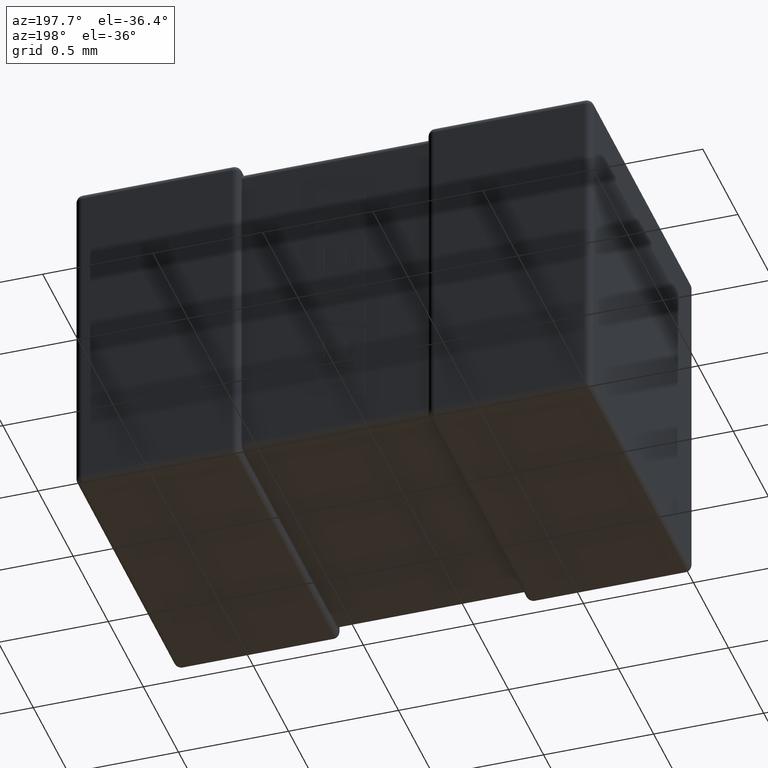
[diagram: clean part render]
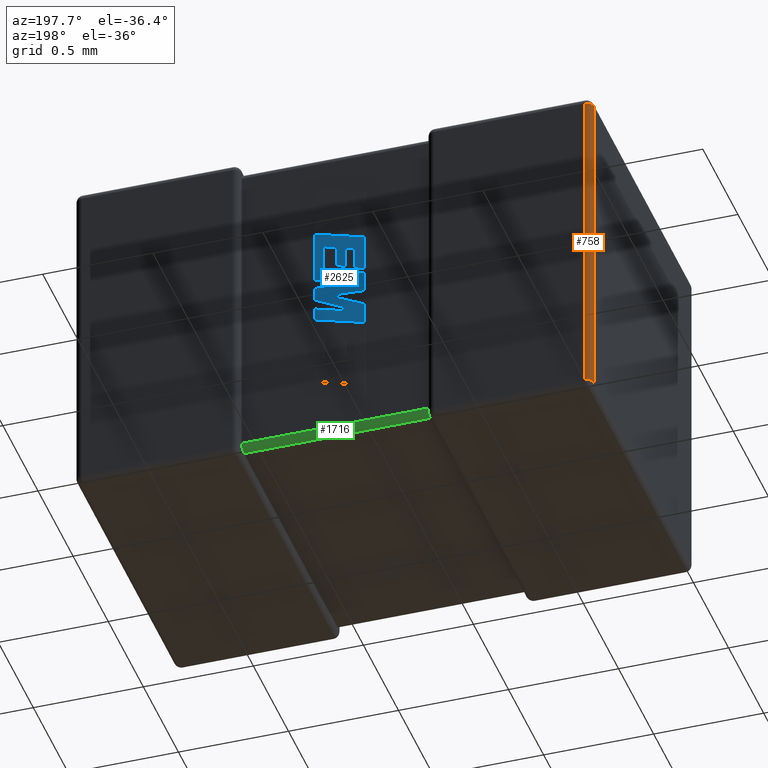
[diagram: same view with three faces highlighted in distinct colors, each labeled with its STEP entity id]
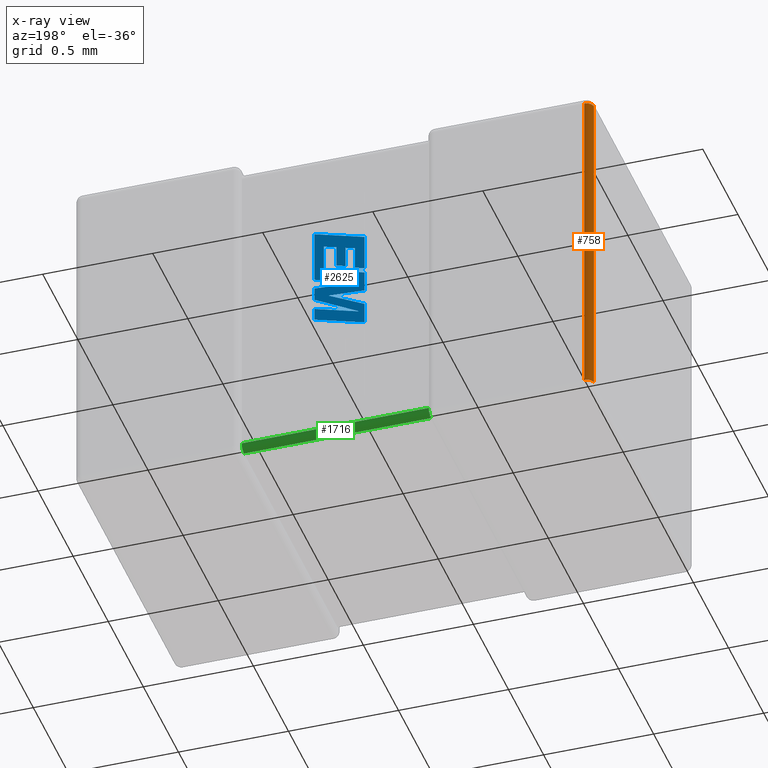
[diagram: x-ray of the same camera — body ghosted, the three highlighted faces saturated]
A machine part, auxiliary view with three faces highlighted in distinct colors.
The next image is the same camera in x-ray (body ghosted, the three faces saturated) — at least one of them is partly hidden behind the body in this view.
Their STEP definitions:

[orange] entity #758 — the highlighted cylindrical surface (edge-blend (fillet) strip) has radius 0.0322 mm, axis along (0, 0, -1).
#372 = CARTESIAN_POINT ( 'NONE',  ( 0.03223999999999978272, 1.417759999999999909, 0.000000000000000000 ) ) ;
#383 = CARTESIAN_POINT ( 'NONE',  ( 0.000000000000000000, 1.417759999999999909, -1.517759999999999998 ) ) ;
#401 = CARTESIAN_POINT ( 'NONE',  ( 0.03223999999999978272, 1.449999999999999956, -0.03223999999999999783 ) ) ;
#427 = ORIENTED_EDGE ( 'NONE', *, *, #4547, .F. ) ;
#614 = EDGE_LOOP ( 'NONE', ( #4531, #3087, #4638, #427 ) ) ;
#698 = VERTEX_POINT ( 'NONE', #3547 ) ;
#758 = ADVANCED_FACE ( 'NONE', ( #3978 ), #1135, .T. ) ;
#766 = CARTESIAN_POINT ( 'NONE',  ( 0.03223999999999999783, 1.417759999999999909, -1.517759999999999998 ) ) ;
#785 = EDGE_CURVE ( 'NONE', #2892, #698, #3423, .T. ) ;
#946 = CARTESIAN_POINT ( 'NONE',  ( 0.03223999999999978272, 1.449999999999999956, 0.000000000000000000 ) ) ;
#971 = LINE ( 'NONE', #1674, #4300 ) ;
#1043 = DIRECTION ( 'NONE',  ( -1.000000000000000000, 0.000000000000000000, 0.000000000000000000 ) ) ;
#1135 = CYLINDRICAL_SURFACE ( 'NONE', #3499, 0.03223999999999999783 ) ;
#1674 = CARTESIAN_POINT ( 'NONE',  ( 0.000000000000000000, 1.417759999999999909, -1.550000000000000044 ) ) ;
#1725 = AXIS2_PLACEMENT_3D ( 'NONE', #766, #4381, #2937 ) ;
#1796 = VERTEX_POINT ( 'NONE', #383 ) ;
#1866 = VECTOR ( 'NONE', #2387, 1000.000000000000000 ) ;
#2337 = LINE ( 'NONE', #946, #1866 ) ;
#2387 = DIRECTION ( 'NONE',  ( 0.000000000000000000, 0.000000000000000000, 1.000000000000000000 ) ) ;
#2892 = VERTEX_POINT ( 'NONE', #401 ) ;
#2937 = DIRECTION ( 'NONE',  ( -1.000000000000000000, 0.000000000000000000, 0.000000000000000000 ) ) ;
#3087 = ORIENTED_EDGE ( 'NONE', *, *, #4634, .F. ) ;
#3169 = DIRECTION ( 'NONE',  ( -0.000000000000000000, 0.000000000000000000, -1.000000000000000000 ) ) ;
#3237 = CIRCLE ( 'NONE', #1725, 0.03223999999999999783 ) ;
#3423 = CIRCLE ( 'NONE', #3803, 0.03224000000000000477 ) ;
#3499 = AXIS2_PLACEMENT_3D ( 'NONE', #372, #4326, #1043 ) ;
#3547 = CARTESIAN_POINT ( 'NONE',  ( 0.000000000000000000, 1.417759999999999909, -0.03223999999999999783 ) ) ;
#3662 = DIRECTION ( 'NONE',  ( 1.000000000000000000, 0.000000000000000000, 0.000000000000000000 ) ) ;
#3803 = AXIS2_PLACEMENT_3D ( 'NONE', #4006, #4309, #3662 ) ;
#3978 = FACE_OUTER_BOUND ( 'NONE', #614, .T. ) ;
#4006 = CARTESIAN_POINT ( 'NONE',  ( 0.03223999999999978272, 1.417759999999999909, -0.03223999999999999783 ) ) ;
#4300 = VECTOR ( 'NONE', #3169, 1000.000000000000000 ) ;
#4309 = DIRECTION ( 'NONE',  ( 0.000000000000000000, -0.000000000000000000, 1.000000000000000000 ) ) ;
#4326 = DIRECTION ( 'NONE',  ( 0.000000000000000000, 0.000000000000000000, -1.000000000000000000 ) ) ;
#4381 = DIRECTION ( 'NONE',  ( 0.000000000000000000, 0.000000000000000000, -1.000000000000000000 ) ) ;
#4471 = EDGE_CURVE ( 'NONE', #1796, #4550, #3237, .T. ) ;
#4531 = ORIENTED_EDGE ( 'NONE', *, *, #4471, .F. ) ;
#4547 = EDGE_CURVE ( 'NONE', #4550, #2892, #2337, .T. ) ;
#4549 = CARTESIAN_POINT ( 'NONE',  ( 0.03223999999999978272, 1.449999999999999956, -1.517759999999999998 ) ) ;
#4550 = VERTEX_POINT ( 'NONE', #4549 ) ;
#4634 = EDGE_CURVE ( 'NONE', #698, #1796, #971, .T. ) ;
#4638 = ORIENTED_EDGE ( 'NONE', *, *, #785, .F. ) ;

[blue] entity #2625 — the highlighted planar face has unit normal (0, -1, 0).
#10 = ORIENTED_EDGE ( 'NONE', *, *, #977, .T. ) ;
#38 = EDGE_CURVE ( 'NONE', #4189, #3215, #2059, .T. ) ;
#72 = VERTEX_POINT ( 'NONE', #3448 ) ;
#85 = EDGE_CURVE ( 'NONE', #3698, #3290, #3870, .T. ) ;
#87 = EDGE_CURVE ( 'NONE', #663, #1887, #1621, .T. ) ;
#154 = CARTESIAN_POINT ( 'NONE',  ( 1.126889512155282880, 1.422759999999999803, -0.5438665490579562833 ) ) ;
#160 = CARTESIAN_POINT ( 'NONE',  ( 1.269000000000003681, 1.422759999999999803, -0.4384253323412780623 ) ) ;
#170 = CARTESIAN_POINT ( 'NONE',  ( 1.269000000000003681, 1.422759999999999803, -0.7915325740813675681 ) ) ;
#206 = LINE ( 'NONE', #1644, #3233 ) ;
#236 = ORIENTED_EDGE ( 'NONE', *, *, #1053, .T. ) ;
#274 = EDGE_CURVE ( 'NONE', #2486, #4004, #1537, .T. ) ;
#321 = CARTESIAN_POINT ( 'NONE',  ( 1.041132956314514857, 1.422759999999999803, -0.6723368301145032921 ) ) ;
#337 = CARTESIAN_POINT ( 'NONE',  ( 1.269000000000003681, 1.422759999999999803, -0.8406046158351553332 ) ) ;
#492 = VERTEX_POINT ( 'NONE', #1813 ) ;
#500 = VECTOR ( 'NONE', #1870, 1000.000000000000000 ) ;
#508 = LINE ( 'NONE', #2225, #1713 ) ;
#513 = CARTESIAN_POINT ( 'NONE',  ( 1.084506278058296802, 1.422759999999999803, -0.6600178949437544018 ) ) ;
#531 = DIRECTION ( 'NONE',  ( -0.9610674221107078363, 0.000000000000000000, -0.2763139702539095244 ) ) ;
#645 = VERTEX_POINT ( 'NONE', #2266 ) ;
#663 = VERTEX_POINT ( 'NONE', #2686 ) ;
#678 = EDGE_CURVE ( 'NONE', #1523, #3459, #1018, .T. ) ;
#696 = DIRECTION ( 'NONE',  ( -0.9611638845408968512, 0.000000000000000000, -0.2759782365590690012 ) ) ;
#729 = EDGE_CURVE ( 'NONE', #2535, #645, #1729, .T. ) ;
#735 = VECTOR ( 'NONE', #989, 1000.000000000000000 ) ;
#752 = FACE_OUTER_BOUND ( 'NONE', #2734, .T. ) ;
#800 = CARTESIAN_POINT ( 'NONE',  ( 1.225648156714193471, 1.422759999999999803, -0.5157117543673824800 ) ) ;
#820 = CARTESIAN_POINT ( 'NONE',  ( 1.126889512155282880, 1.422759999999999803, -0.6416697486451697907 ) ) ;
#824 = LINE ( 'NONE', #800, #3346 ) ;
#831 = CARTESIAN_POINT ( 'NONE',  ( 1.225648156714193471, 1.422759999999999803, -0.6420286467557699828 ) ) ;
#849 = LINE ( 'NONE', #170, #1914 ) ;
#872 = EDGE_CURVE ( 'NONE', #4455, #492, #824, .T. ) ;
#939 = EDGE_CURVE ( 'NONE', #4292, #3698, #4591, .T. ) ;
#949 = CARTESIAN_POINT ( 'NONE',  ( 1.269000000000003681, 1.422759999999999803, -0.7307852580555117550 ) ) ;
#969 = VECTOR ( 'NONE', #1984, 1000.000000000000000 ) ;
#977 = EDGE_CURVE ( 'NONE', #492, #4189, #1995, .T. ) ;
#989 = DIRECTION ( 'NONE',  ( 0.000000000000000000, 0.000000000000000000, 1.000000000000000000 ) ) ;
#1018 = LINE ( 'NONE', #1351, #2280 ) ;
#1027 = EDGE_CURVE ( 'NONE', #1880, #2535, #4163, .T. ) ;
#1047 = CARTESIAN_POINT ( 'NONE',  ( 1.269000000000003681, 1.422759999999999803, -0.6839081761791220293 ) ) ;
#1053 = EDGE_CURVE ( 'NONE', #3465, #3045, #3489, .T. ) ;
#1070 = LINE ( 'NONE', #1375, #4496 ) ;
#1115 = CARTESIAN_POINT ( 'NONE',  ( 1.041132956314514857, 1.422759999999999803, -0.6723368301145032921 ) ) ;
#1192 = ORIENTED_EDGE ( 'NONE', *, *, #1027, .T. ) ;
#1205 = LINE ( 'NONE', #820, #4271 ) ;
#1234 = VECTOR ( 'NONE', #2332, 1000.000000000000114 ) ;
#1257 = LINE ( 'NONE', #3012, #1981 ) ;
#1259 = ORIENTED_EDGE ( 'NONE', *, *, #3210, .T. ) ;
#1285 = LINE ( 'NONE', #2398, #969 ) ;
#1305 = VECTOR ( 'NONE', #3802, 1000.000000000000114 ) ;
#1316 = EDGE_CURVE ( 'NONE', #3215, #3190, #1205, .T. ) ;
#1336 = VECTOR ( 'NONE', #1596, 1000.000000000000000 ) ;
#1351 = CARTESIAN_POINT ( 'NONE',  ( 1.041132956314514857, 1.422759999999999803, -0.9640226091935145680 ) ) ;
#1364 = CARTESIAN_POINT ( 'NONE',  ( 1.041132956314514857, 1.422759999999999803, -0.5039962945937563887 ) ) ;
#1375 = CARTESIAN_POINT ( 'NONE',  ( 1.269000000000003681, 1.422759999999999803, -0.6839081761791220293 ) ) ;
#1376 = EDGE_CURVE ( 'NONE', #3459, #1880, #2319, .T. ) ;
#1394 = CARTESIAN_POINT ( 'NONE',  ( 1.225648156714193471, 1.422759999999999803, -0.5157117543673824800 ) ) ;
#1417 = ORIENTED_EDGE ( 'NONE', *, *, #3788, .T. ) ;
#1470 = PLANE ( 'NONE',  #3907 ) ;
#1523 = VERTEX_POINT ( 'NONE', #3337 ) ;
#1535 = LINE ( 'NONE', #154, #4298 ) ;
#1537 = LINE ( 'NONE', #513, #3580 ) ;
#1560 = VERTEX_POINT ( 'NONE', #831 ) ;
#1586 = ORIENTED_EDGE ( 'NONE', *, *, #38, .T. ) ;
#1590 = DIRECTION ( 'NONE',  ( 0.000000000000000000, 0.000000000000000000, 1.000000000000000000 ) ) ;
#1596 = DIRECTION ( 'NONE',  ( 0.000000000000000000, 0.000000000000000000, -1.000000000000000000 ) ) ;
#1621 = LINE ( 'NONE', #3515, #2827 ) ;
#1644 = CARTESIAN_POINT ( 'NONE',  ( 1.225648156714193471, 1.422759999999999803, -0.6420286467557699828 ) ) ;
#1656 = CARTESIAN_POINT ( 'NONE',  ( 1.203924100055729252, 1.422759999999999803, -0.7833425935635931481 ) ) ;
#1684 = EDGE_CURVE ( 'NONE', #4029, #663, #1070, .T. ) ;
#1713 = VECTOR ( 'NONE', #531, 1000.000000000000114 ) ;
#1729 = LINE ( 'NONE', #3495, #2895 ) ;
#1813 = CARTESIAN_POINT ( 'NONE',  ( 1.169014311898064706, 1.422759999999999803, -0.5318483123047624828 ) ) ;
#1821 = CARTESIAN_POINT ( 'NONE',  ( 1.065159037018030608, 1.422759999999999803, -0.8991410363531673333 ) ) ;
#1826 = VECTOR ( 'NONE', #3449, 1000.000000000000000 ) ;
#1870 = DIRECTION ( 'NONE',  ( 0.000000000000000000, 0.000000000000000000, -1.000000000000000000 ) ) ;
#1880 = VERTEX_POINT ( 'NONE', #1656 ) ;
#1887 = VERTEX_POINT ( 'NONE', #949 ) ;
#1905 = ORIENTED_EDGE ( 'NONE', *, *, #872, .T. ) ;
#1912 = EDGE_CURVE ( 'NONE', #2196, #4292, #849, .T. ) ;
#1914 = VECTOR ( 'NONE', #4551, 1000.000000000000227 ) ;
#1915 = CARTESIAN_POINT ( 'NONE',  ( 1.041132956314514857, 1.422759999999999803, -0.5039962945937563887 ) ) ;
#1924 = CARTESIAN_POINT ( 'NONE',  ( 1.269000000000003681, 1.422759999999999803, -0.7915325740813675681 ) ) ;
#1928 = ORIENTED_EDGE ( 'NONE', *, *, #2927, .T. ) ;
#1981 = VECTOR ( 'NONE', #3361, 1000.000000000000000 ) ;
#1984 = DIRECTION ( 'NONE',  ( 0.000000000000000000, 0.000000000000000000, -1.000000000000000000 ) ) ;
#1995 = LINE ( 'NONE', #3516, #1826 ) ;
#2002 = DIRECTION ( 'NONE',  ( 0.000000000000000000, 0.000000000000000000, 1.000000000000000000 ) ) ;
#2037 = DIRECTION ( 'NONE',  ( -0.9985542843760948362, 0.000000000000000000, -0.05375259206908061110 ) ) ;
#2059 = LINE ( 'NONE', #3073, #1234 ) ;
#2096 = ORIENTED_EDGE ( 'NONE', *, *, #3044, .T. ) ;
#2130 = VECTOR ( 'NONE', #4458, 1000.000000000000114 ) ;
#2196 = VERTEX_POINT ( 'NONE', #1924 ) ;
#2204 = VECTOR ( 'NONE', #3778, 1000.000000000000000 ) ;
#2225 = CARTESIAN_POINT ( 'NONE',  ( 1.269000000000003681, 1.422759999999999803, -0.8985091539642460212 ) ) ;
#2258 = DIRECTION ( 'NONE',  ( -0.9617234872620624708, 0.000000000000000000, -0.2740217765953968376 ) ) ;
#2266 = CARTESIAN_POINT ( 'NONE',  ( 1.041132956314514857, 1.422759999999999803, -0.6950651962186354949 ) ) ;
#2280 = VECTOR ( 'NONE', #2753, 1000.000000000000000 ) ;
#2319 = LINE ( 'NONE', #3320, #2130 ) ;
#2332 = DIRECTION ( 'NONE',  ( -0.9615454294334447871, 0.000000000000000000, -0.2746459304917006072 ) ) ;
#2338 = ORIENTED_EDGE ( 'NONE', *, *, #3546, .T. ) ;
#2375 = EDGE_CURVE ( 'NONE', #3045, #4029, #4512, .T. ) ;
#2388 = ORIENTED_EDGE ( 'NONE', *, *, #2375, .T. ) ;
#2398 = CARTESIAN_POINT ( 'NONE',  ( 1.269000000000003681, 1.422759999999999803, -0.7307852580555117550 ) ) ;
#2408 = DIRECTION ( 'NONE',  ( 0.9984327301130250243, 0.000000000000000000, 0.05596501978067341954 ) ) ;
#2433 = CARTESIAN_POINT ( 'NONE',  ( 1.269000000000003681, 1.422759999999999803, -0.4384253323412780623 ) ) ;
#2486 = VERTEX_POINT ( 'NONE', #3096 ) ;
#2535 = VERTEX_POINT ( 'NONE', #4607 ) ;
#2595 = VECTOR ( 'NONE', #2814, 1000.000000000000114 ) ;
#2625 = ADVANCED_FACE ( 'NONE', ( #752 ), #1470, .F. ) ;
#2648 = ORIENTED_EDGE ( 'NONE', *, *, #2737, .T. ) ;
#2669 = DIRECTION ( 'NONE',  ( -0.9619530280415479195, 0.000000000000000000, -0.2732148821746301914 ) ) ;
#2685 = ORIENTED_EDGE ( 'NONE', *, *, #87, .T. ) ;
#2686 = CARTESIAN_POINT ( 'NONE',  ( 1.066135960447848641, 1.422759999999999803, -0.7421563696426072276 ) ) ;
#2731 = LINE ( 'NONE', #3100, #1336 ) ;
#2734 = EDGE_LOOP ( 'NONE', ( #3621, #2872, #1192, #3702, #1417, #1259, #1905, #10, #1586, #4482, #3382, #1928, #4167, #2096, #236, #2388, #4671, #2685, #2338, #3806, #4324, #4406, #2648 ) ) ;
#2737 = EDGE_CURVE ( 'NONE', #3290, #1523, #508, .T. ) ;
#2753 = DIRECTION ( 'NONE',  ( 0.000000000000000000, 0.000000000000000000, 1.000000000000000000 ) ) ;
#2814 = DIRECTION ( 'NONE',  ( 0.9610029908221285888, 0.000000000000000000, 0.2765379750249931101 ) ) ;
#2827 = VECTOR ( 'NONE', #2408, 1000.000000000000227 ) ;
#2872 = ORIENTED_EDGE ( 'NONE', *, *, #1376, .T. ) ;
#2895 = VECTOR ( 'NONE', #2002, 1000.000000000000000 ) ;
#2927 = EDGE_CURVE ( 'NONE', #72, #2486, #2731, .T. ) ;
#3012 = CARTESIAN_POINT ( 'NONE',  ( 1.041132956314514857, 1.422759999999999803, -0.6950651962186354949 ) ) ;
#3044 = EDGE_CURVE ( 'NONE', #4004, #3465, #4238, .T. ) ;
#3045 = VERTEX_POINT ( 'NONE', #2433 ) ;
#3073 = CARTESIAN_POINT ( 'NONE',  ( 1.169014311898064706, 1.422759999999999803, -0.6296376548220525837 ) ) ;
#3096 = CARTESIAN_POINT ( 'NONE',  ( 1.084506278058296802, 1.422759999999999803, -0.6600178949437544018 ) ) ;
#3100 = CARTESIAN_POINT ( 'NONE',  ( 1.084506278058296802, 1.422759999999999803, -0.5561993412986168117 ) ) ;
#3115 = CARTESIAN_POINT ( 'NONE',  ( 1.269000000000003681, 1.422759999999999803, -0.8406046158351553332 ) ) ;
#3116 = CARTESIAN_POINT ( 'NONE',  ( 1.065159037018030608, 1.422759999999999803, -0.8991410363531673333 ) ) ;
#3190 = VERTEX_POINT ( 'NONE', #3420 ) ;
#3205 = CARTESIAN_POINT ( 'NONE',  ( 1.269000000000003681, 1.422759999999999803, -0.8985091539642460212 ) ) ;
#3210 = EDGE_CURVE ( 'NONE', #1560, #4455, #206, .T. ) ;
#3215 = VERTEX_POINT ( 'NONE', #4560 ) ;
#3233 = VECTOR ( 'NONE', #4541, 1000.000000000000000 ) ;
#3255 = DIRECTION ( 'NONE',  ( 0.000000000000000000, -1.000000000000000000, 0.000000000000000000 ) ) ;
#3290 = VERTEX_POINT ( 'NONE', #3205 ) ;
#3320 = CARTESIAN_POINT ( 'NONE',  ( 1.041132956314514857, 1.422759999999999803, -0.8640816736198583259 ) ) ;
#3337 = CARTESIAN_POINT ( 'NONE',  ( 1.041132956314514857, 1.422759999999999803, -0.9640226091935145680 ) ) ;
#3346 = VECTOR ( 'NONE', #2258, 1000.000000000000114 ) ;
#3354 = CARTESIAN_POINT ( 'NONE',  ( 1.169014311898064706, 1.422759999999999803, -0.6296376548220525837 ) ) ;
#3361 = DIRECTION ( 'NONE',  ( 0.9610853065513847993, 0.000000000000000000, 0.2762517575166369976 ) ) ;
#3382 = ORIENTED_EDGE ( 'NONE', *, *, #3497, .T. ) ;
#3420 = CARTESIAN_POINT ( 'NONE',  ( 1.126889512155282880, 1.422759999999999803, -0.5438665490579562833 ) ) ;
#3448 = CARTESIAN_POINT ( 'NONE',  ( 1.084506278058296802, 1.422759999999999803, -0.5561993412986168117 ) ) ;
#3449 = DIRECTION ( 'NONE',  ( 0.000000000000000000, 0.000000000000000000, -1.000000000000000000 ) ) ;
#3459 = VERTEX_POINT ( 'NONE', #3705 ) ;
#3465 = VERTEX_POINT ( 'NONE', #1915 ) ;
#3489 = LINE ( 'NONE', #1364, #2595 ) ;
#3495 = CARTESIAN_POINT ( 'NONE',  ( 1.041132956314514857, 1.422759999999999803, -0.7921057084777192170 ) ) ;
#3497 = EDGE_CURVE ( 'NONE', #3190, #72, #1535, .T. ) ;
#3515 = CARTESIAN_POINT ( 'NONE',  ( 1.066135960447848641, 1.422759999999999803, -0.7421563696426072276 ) ) ;
#3516 = CARTESIAN_POINT ( 'NONE',  ( 1.169014311898064706, 1.422759999999999803, -0.5318483123047624828 ) ) ;
#3546 = EDGE_CURVE ( 'NONE', #1887, #2196, #1285, .T. ) ;
#3580 = VECTOR ( 'NONE', #2669, 1000.000000000000000 ) ;
#3621 = ORIENTED_EDGE ( 'NONE', *, *, #678, .T. ) ;
#3698 = VERTEX_POINT ( 'NONE', #337 ) ;
#3702 = ORIENTED_EDGE ( 'NONE', *, *, #729, .T. ) ;
#3705 = CARTESIAN_POINT ( 'NONE',  ( 1.041132956314514857, 1.422759999999999803, -0.8640816736198583259 ) ) ;
#3778 = DIRECTION ( 'NONE',  ( 0.000000000000000000, 0.000000000000000000, -1.000000000000000000 ) ) ;
#3788 = EDGE_CURVE ( 'NONE', #645, #1560, #1257, .T. ) ;
#3802 = DIRECTION ( 'NONE',  ( 0.9611542233438712390, 0.000000000000000000, 0.2760118818968482213 ) ) ;
#3806 = ORIENTED_EDGE ( 'NONE', *, *, #1912, .T. ) ;
#3870 = LINE ( 'NONE', #3115, #2204 ) ;
#3907 = AXIS2_PLACEMENT_3D ( 'NONE', #4647, #3255, #3946 ) ;
#3946 = DIRECTION ( 'NONE',  ( 0.000000000000000000, 0.000000000000000000, -1.000000000000000000 ) ) ;
#4004 = VERTEX_POINT ( 'NONE', #1115 ) ;
#4029 = VERTEX_POINT ( 'NONE', #1047 ) ;
#4087 = DIRECTION ( 'NONE',  ( -0.9601763114327565019, 0.000000000000000000, -0.2793947940878393488 ) ) ;
#4113 = VECTOR ( 'NONE', #2037, 1000.000000000000114 ) ;
#4163 = LINE ( 'NONE', #4544, #4113 ) ;
#4167 = ORIENTED_EDGE ( 'NONE', *, *, #274, .T. ) ;
#4189 = VERTEX_POINT ( 'NONE', #3354 ) ;
#4238 = LINE ( 'NONE', #321, #735 ) ;
#4271 = VECTOR ( 'NONE', #1590, 1000.000000000000000 ) ;
#4292 = VERTEX_POINT ( 'NONE', #1821 ) ;
#4298 = VECTOR ( 'NONE', #4087, 1000.000000000000114 ) ;
#4324 = ORIENTED_EDGE ( 'NONE', *, *, #939, .T. ) ;
#4406 = ORIENTED_EDGE ( 'NONE', *, *, #85, .T. ) ;
#4455 = VERTEX_POINT ( 'NONE', #1394 ) ;
#4458 = DIRECTION ( 'NONE',  ( 0.8958676361826827250, 0.000000000000000000, 0.4443210308329466618 ) ) ;
#4482 = ORIENTED_EDGE ( 'NONE', *, *, #1316, .T. ) ;
#4496 = VECTOR ( 'NONE', #696, 1000.000000000000114 ) ;
#4512 = LINE ( 'NONE', #160, #500 ) ;
#4541 = DIRECTION ( 'NONE',  ( 0.000000000000000000, 0.000000000000000000, 1.000000000000000000 ) ) ;
#4544 = CARTESIAN_POINT ( 'NONE',  ( 1.203924100055729252, 1.422759999999999803, -0.7833425935635931481 ) ) ;
#4551 = DIRECTION ( 'NONE',  ( -0.8843386665637651411, 0.000000000000000000, -0.4668459304955136502 ) ) ;
#4560 = CARTESIAN_POINT ( 'NONE',  ( 1.126889512155282880, 1.422759999999999803, -0.6416697486451697907 ) ) ;
#4591 = LINE ( 'NONE', #3116, #1305 ) ;
#4607 = CARTESIAN_POINT ( 'NONE',  ( 1.041132956314514857, 1.422759999999999803, -0.7921057084777192170 ) ) ;
#4647 = CARTESIAN_POINT ( 'NONE',  ( -0.2601923135456278291, 1.422759999999999803, 0.003507179810070972133 ) ) ;
#4671 = ORIENTED_EDGE ( 'NONE', *, *, #1684, .T. ) ;

[green] entity #1716 — the highlighted cylindrical surface (edge-blend (fillet) strip) has radius 0.0322 mm, axis along (1, 0, 0).
#22 = CARTESIAN_POINT ( 'NONE',  ( 1.600049459857656675, 1.396099182923544513, -1.515974859853070678 ) ) ;
#84 = CARTESIAN_POINT ( 'NONE',  ( 1.600697797675425749, 1.410654762138142893, -1.505979483112765527 ) ) ;
#130 = B_SPLINE_CURVE_WITH_KNOTS ( 'NONE', 3,
 ( #1279, #4151, #905, #922, #524, #3029, #3718, #2363, #2316, #3056 ),
 .UNSPECIFIED., .F., .F.,
 ( 4, 3, 3, 4 ),
 ( 0.000000000000000000, 1.072885282551940671E-05, 2.147986152936616350E-05, 2.526070755706004322E-05 ),
 .UNSPECIFIED. ) ;
#192 = CARTESIAN_POINT ( 'NONE',  ( 0.7499975789351751576, 1.390551895794881920, -1.517364899508546916 ) ) ;
#235 = CARTESIAN_POINT ( 'NONE',  ( 0.7500000000000000000, 1.385519999999999863, -1.517759999999999998 ) ) ;
#354 = VERTEX_POINT ( 'NONE', #1397 ) ;
#377 = CARTESIAN_POINT ( 'NONE',  ( 1.600000000000000089, 1.385519999999999863, -1.517759999999999998 ) ) ;
#414 = CARTESIAN_POINT ( 'NONE',  ( 0.7500000000000000000, 1.385519999999999863, -1.517759999999999998 ) ) ;
#441 = CARTESIAN_POINT ( 'NONE',  ( 1.600000000000000089, 1.417759999999999909, -1.485519999999999952 ) ) ;
#447 = CARTESIAN_POINT ( 'NONE',  ( 1.601413880119462174, 1.408317122625454054, -1.508317122625454143 ) ) ;
#474 = B_SPLINE_CURVE_WITH_KNOTS ( 'NONE', 3,
 ( #1176, #84, #3041, #4466, #515, #2700, #1516, #864, #2352, #1966 ),
 .UNSPECIFIED., .F., .F.,
 ( 4, 3, 3, 4 ),
 ( 0.000000000000000000, 1.014775933115376742E-05, 2.024199515298748933E-05, 2.523223766968288618E-05 ),
 .UNSPECIFIED. ) ;
#515 = CARTESIAN_POINT ( 'NONE',  ( 1.600024704852633484, 1.415769858641931389, -1.497169005081912863 ) ) ;
#524 = CARTESIAN_POINT ( 'NONE',  ( 0.7498854032967282590, 1.414800279668359417, -1.499480509739623102 ) ) ;
#717 = ORIENTED_EDGE ( 'NONE', *, *, #4089, .F. ) ;
#770 = B_SPLINE_CURVE_WITH_KNOTS ( 'NONE', 3,
 ( #377, #2888, #1809, #22, #1459, #2745, #4181, #2379, #4379, #447 ),
 .UNSPECIFIED., .F., .F.,
 ( 4, 3, 3, 4 ),
 ( 0.000000000000000000, 1.072885282551940840E-05, 2.147986152936618383E-05, 2.526070755706036848E-05 ),
 .UNSPECIFIED. ) ;
#847 = VERTEX_POINT ( 'NONE', #3690 ) ;
#864 = CARTESIAN_POINT ( 'NONE',  ( 1.599999202768294548, 1.417627491154662467, -1.488890056018540076 ) ) ;
#903 = CARTESIAN_POINT ( 'NONE',  ( 0.7493022023245741181, 1.405979483112765660, -1.510654762138142981 ) ) ;
#905 = CARTESIAN_POINT ( 'NONE',  ( 0.7500156072177825983, 1.417148181907071036, -1.492721477955652354 ) ) ;
#920 = CARTESIAN_POINT ( 'NONE',  ( 0.7498072791938381609, 1.400168270418436389, -1.514240128372769556 ) ) ;
#922 = CARTESIAN_POINT ( 'NONE',  ( 0.7499505401423433026, 1.415974859853070589, -1.496099182923544602 ) ) ;
#925 = EDGE_CURVE ( 'NONE', #2374, #354, #2978, .T. ) ;
#1176 = CARTESIAN_POINT ( 'NONE',  ( 1.601413880119462174, 1.408317122625454054, -1.508317122625454143 ) ) ;
#1279 = CARTESIAN_POINT ( 'NONE',  ( 0.7499999999999998890, 1.417759999999999909, -1.485519999999999952 ) ) ;
#1397 = CARTESIAN_POINT ( 'NONE',  ( 0.7499999999999998890, 1.417759999999999909, -1.485519999999999952 ) ) ;
#1439 = CARTESIAN_POINT ( 'NONE',  ( 1.600000000000000089, 1.385519999999999863, -1.517759999999999998 ) ) ;
#1442 = DIRECTION ( 'NONE',  ( 1.000000000000000000, 0.000000000000000000, 0.000000000000000000 ) ) ;
#1459 = CARTESIAN_POINT ( 'NONE',  ( 1.600114596703271497, 1.399480509739623013, -1.514800279668359284 ) ) ;
#1501 = CARTESIAN_POINT ( 'NONE',  ( 0.7500000000000000000, 1.385519999999999863, -1.517759999999999998 ) ) ;
#1516 = CARTESIAN_POINT ( 'NONE',  ( 1.600002421064824931, 1.417364899508546827, -1.490551895794881343 ) ) ;
#1522 = VECTOR ( 'NONE', #2796, 1000.000000000000000 ) ;
#1627 = CARTESIAN_POINT ( 'NONE',  ( 0.7500007972317054294, 1.388890056018540653, -1.517627491154662556 ) ) ;
#1681 = CYLINDRICAL_SURFACE ( 'NONE', #2218, 0.03224000000000000477 ) ;
#1716 = ADVANCED_FACE ( 'NONE', ( #2048 ), #1681, .T. ) ;
#1809 = CARTESIAN_POINT ( 'NONE',  ( 1.599984392782217490, 1.392721477955652265, -1.517148181907071125 ) ) ;
#1901 = EDGE_CURVE ( 'NONE', #354, #847, #130, .T. ) ;
#1963 = ORIENTED_EDGE ( 'NONE', *, *, #4618, .F. ) ;
#1966 = CARTESIAN_POINT ( 'NONE',  ( 1.600000000000000089, 1.417759999999999909, -1.485519999999999952 ) ) ;
#1973 = CARTESIAN_POINT ( 'NONE',  ( 0.7499752951473664941, 1.397169005081913440, -1.515769858641931034 ) ) ;
#2048 = FACE_OUTER_BOUND ( 'NONE', #2533, .T. ) ;
#2218 = AXIS2_PLACEMENT_3D ( 'NONE', #3199, #4643, #4296 ) ;
#2316 = CARTESIAN_POINT ( 'NONE',  ( 0.7488563999109629776, 1.409199447395922844, -1.507434797855135677 ) ) ;
#2346 = EDGE_CURVE ( 'NONE', #4090, #2374, #474, .T. ) ;
#2352 = CARTESIAN_POINT ( 'NONE',  ( 1.599999999999948574, 1.417760000000002796, -1.487202461343470450 ) ) ;
#2363 = CARTESIAN_POINT ( 'NONE',  ( 0.7490724855106603020, 1.410040537175369701, -1.506490481321296704 ) ) ;
#2374 = VERTEX_POINT ( 'NONE', #441 ) ;
#2379 = CARTESIAN_POINT ( 'NONE',  ( 1.600927514489339787, 1.406490481321296615, -1.510040537175369790 ) ) ;
#2533 = EDGE_LOOP ( 'NONE', ( #4270, #4146, #3543, #717, #3230, #1963 ) ) ;
#2674 = EDGE_CURVE ( 'NONE', #2883, #3661, #3232, .T. ) ;
#2700 = CARTESIAN_POINT ( 'NONE',  ( 1.600008869355398211, 1.416838761776869404, -1.493881615621346137 ) ) ;
#2745 = CARTESIAN_POINT ( 'NONE',  ( 1.600270654266055192, 1.402713479379099404, -1.513022448610046977 ) ) ;
#2796 = DIRECTION ( 'NONE',  ( -1.000000000000000000, -0.000000000000000000, -0.000000000000000000 ) ) ;
#2883 = VERTEX_POINT ( 'NONE', #1501 ) ;
#2888 = CARTESIAN_POINT ( 'NONE',  ( 1.600000000000000089, 1.389096284275170845, -1.517759999999999998 ) ) ;
#2978 = LINE ( 'NONE', #4211, #1522 ) ;
#3029 = CARTESIAN_POINT ( 'NONE',  ( 0.7497293457339448963, 1.413022448610047110, -1.502713479379099493 ) ) ;
#3041 = CARTESIAN_POINT ( 'NONE',  ( 1.600361312350153664, 1.412705157540814715, -1.503177810663318237 ) ) ;
#3056 = CARTESIAN_POINT ( 'NONE',  ( 0.7485861198805378036, 1.408317122625454276, -1.508317122625454143 ) ) ;
#3103 = CARTESIAN_POINT ( 'NONE',  ( 0.7485861198805378036, 1.408317122625454276, -1.508317122625454143 ) ) ;
#3199 = CARTESIAN_POINT ( 'NONE',  ( 0.7500000000000000000, 1.385519999999999863, -1.485519999999999952 ) ) ;
#3230 = ORIENTED_EDGE ( 'NONE', *, *, #2674, .F. ) ;
#3232 = LINE ( 'NONE', #414, #4064 ) ;
#3428 = CARTESIAN_POINT ( 'NONE',  ( 0.7499911306446017667, 1.393881615621346715, -1.516838761776869493 ) ) ;
#3543 = ORIENTED_EDGE ( 'NONE', *, *, #2346, .F. ) ;
#3661 = VERTEX_POINT ( 'NONE', #1439 ) ;
#3690 = CARTESIAN_POINT ( 'NONE',  ( 0.7485861198805378036, 1.408317122625454276, -1.508317122625454143 ) ) ;
#3703 = B_SPLINE_CURVE_WITH_KNOTS ( 'NONE', 3,
 ( #3103, #903, #3783, #920, #1973, #3428, #192, #1627, #4525, #235 ),
 .UNSPECIFIED., .F., .F.,
 ( 4, 3, 3, 4 ),
 ( 0.000000000000000000, 1.014775933115346588E-05, 2.024199515298706582E-05, 2.523223766968311996E-05 ),
 .UNSPECIFIED. ) ;
#3718 = CARTESIAN_POINT ( 'NONE',  ( 0.7492451559485320267, 1.410824399456671818, -1.505497611672499181 ) ) ;
#3783 = CARTESIAN_POINT ( 'NONE',  ( 0.7496386876498464247, 1.403177810663318592, -1.512705157540814582 ) ) ;
#4064 = VECTOR ( 'NONE', #1442, 1000.000000000000000 ) ;
#4089 = EDGE_CURVE ( 'NONE', #3661, #4090, #770, .T. ) ;
#4090 = VERTEX_POINT ( 'NONE', #4542 ) ;
#4146 = ORIENTED_EDGE ( 'NONE', *, *, #925, .F. ) ;
#4151 = CARTESIAN_POINT ( 'NONE',  ( 0.7499999999999998890, 1.417759999999999909, -1.489096284275170934 ) ) ;
#4181 = CARTESIAN_POINT ( 'NONE',  ( 1.600754844051468062, 1.405497611672499314, -1.510824399456671685 ) ) ;
#4211 = CARTESIAN_POINT ( 'NONE',  ( 0.7499999999999998890, 1.417759999999999909, -1.485519999999999952 ) ) ;
#4270 = ORIENTED_EDGE ( 'NONE', *, *, #1901, .F. ) ;
#4296 = DIRECTION ( 'NONE',  ( 0.000000000000000000, 0.000000000000000000, -1.000000000000000000 ) ) ;
#4379 = CARTESIAN_POINT ( 'NONE',  ( 1.601143600089037111, 1.407434797855135811, -1.509199447395922933 ) ) ;
#4466 = CARTESIAN_POINT ( 'NONE',  ( 1.600192720806161706, 1.414240128372769689, -1.500168270418436034 ) ) ;
#4525 = CARTESIAN_POINT ( 'NONE',  ( 0.7500000000000512923, 1.387202461343470805, -1.517760000000002663 ) ) ;
#4542 = CARTESIAN_POINT ( 'NONE',  ( 1.601413880119462174, 1.408317122625454054, -1.508317122625454143 ) ) ;
#4618 = EDGE_CURVE ( 'NONE', #847, #2883, #3703, .T. ) ;
#4643 = DIRECTION ( 'NONE',  ( 1.000000000000000000, 0.000000000000000000, 0.000000000000000000 ) ) ;